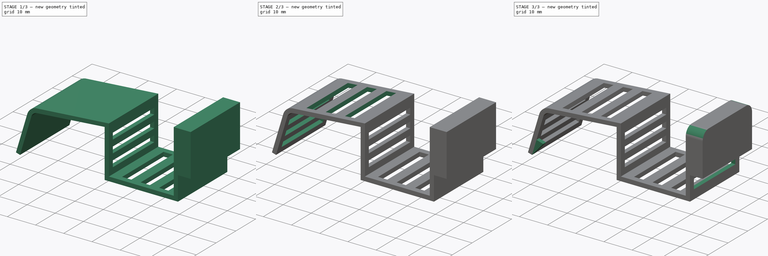
[diagram: build sequence overview — one tinted view per stage of 3, left to right]
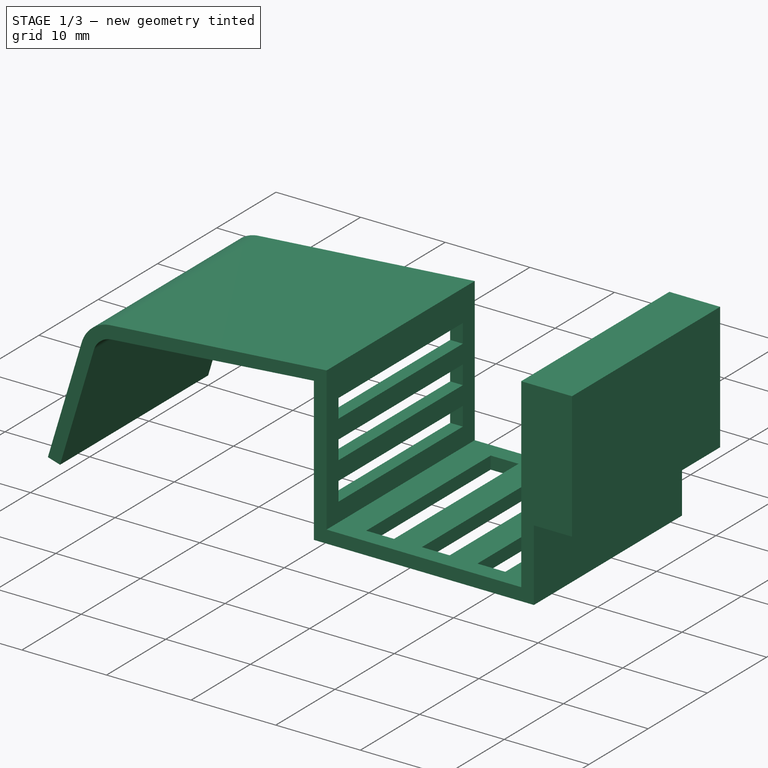
[diagram: stage 1 of 3 — iso view after this stage's code; geometry added in this stage tinted green]
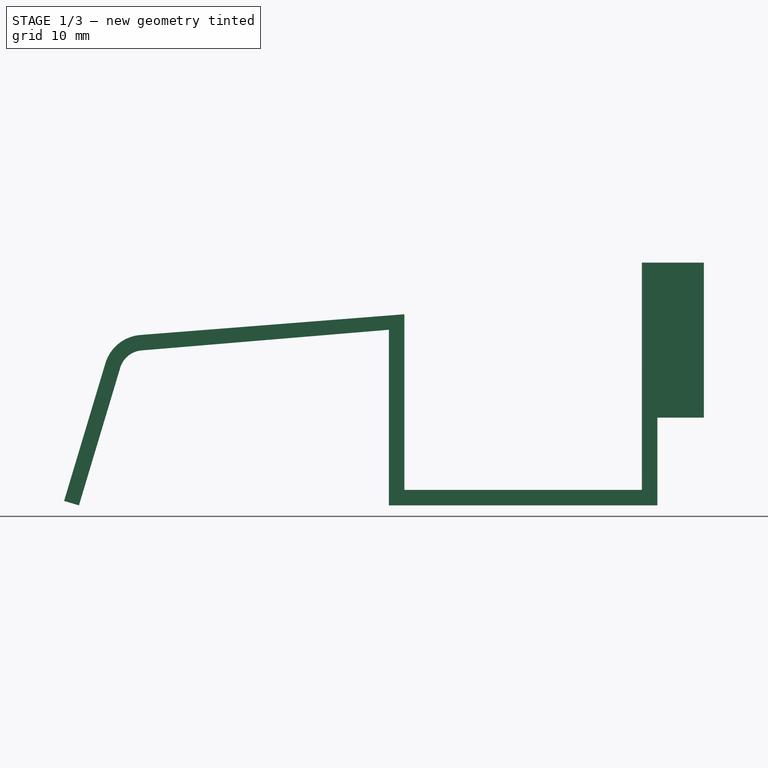
[diagram: stage 1 of 3 — front view after this stage's code; geometry added in this stage tinted green]
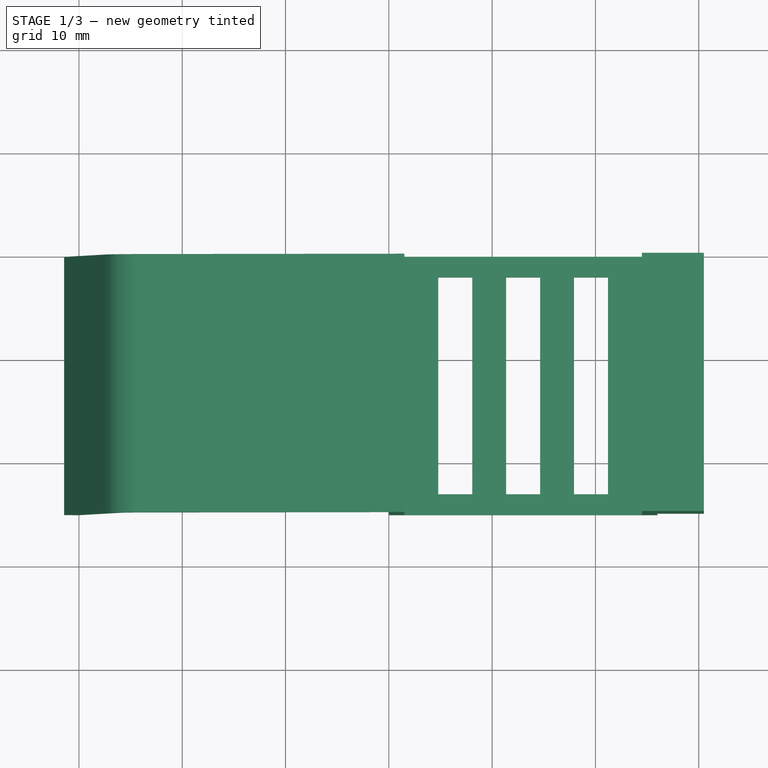
[diagram: stage 1 of 3 — top view after this stage's code; geometry added in this stage tinted green]
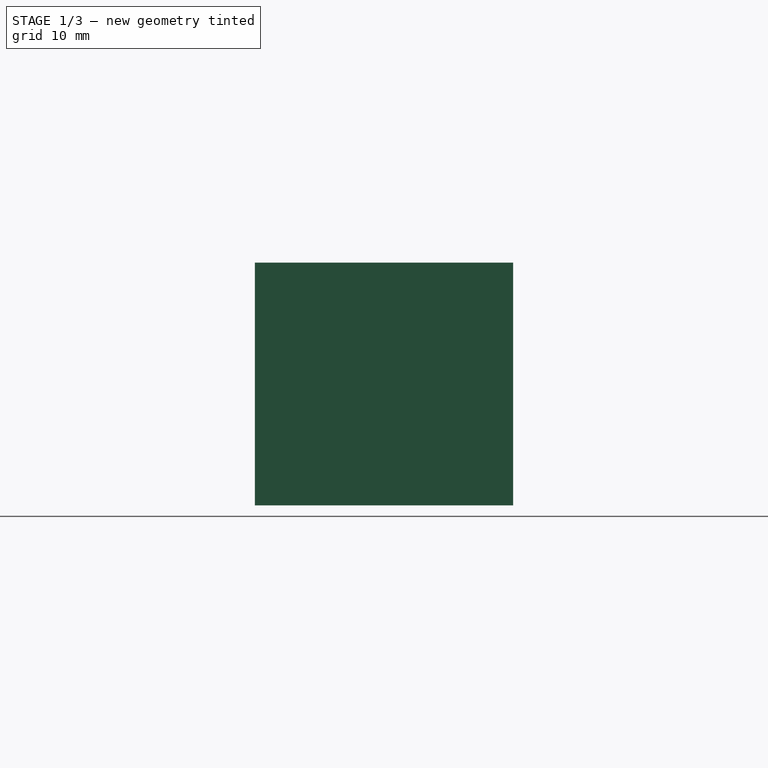
[diagram: stage 1 of 3 — right view after this stage's code; geometry added in this stage tinted green]
FCSTD DOCUMENT  (FreeCAD 0.16R6712 (Git))
Label: Porte camera
License: All rights reserved
LicenseURL: http://en.wikipedia.org/wiki/All_rights_reserved
objects: Sketcher::SketchObject×7, PartDesign::Pocket×5, PartDesign::Pad×2, PartDesign::Fillet×1
note: 22 computed .brp shape members not serialized (recipe doc carries the construction recipe); baked Part::Feature solids carry a one-line shape summary decoded from their .brp

FEATURE [Sketcher::SketchObject] Sketch
  Placement = pos=(0,0,0) rot=(1,0,0;1.5708rad)
  sketch-geometry (19):
    g0: LineSegment StartX=0 StartY=0 StartZ=0 EndX=0 EndY=-17 EndZ=0
    g1: LineSegment StartX=0 StartY=-17 StartZ=0 EndX=26 EndY=-17 EndZ=0
    g2: LineSegment StartX=30.5 StartY=6.5 StartZ=0 EndX=24.5 EndY=6.5 EndZ=0
    g3: LineSegment StartX=24.5 StartY=6.5 StartZ=0 EndX=24.5 EndY=-15.5 EndZ=0
    g4: LineSegment StartX=24.5 StartY=-15.5 StartZ=0 EndX=1.5 EndY=-15.5 EndZ=0
    g5: LineSegment StartX=1.5 StartY=-15.5 StartZ=0 EndX=1.5 EndY=1.5 EndZ=0
    g6: LineSegment StartX=1.5 StartY=1.5 StartZ=0 EndX=-24.0443 EndY=-0.503627 EndZ=0
    g7: LineSegment StartX=-27.4386 StartY=-3.2418 StartZ=0 EndX=-31.4367 EndY=-16.569 EndZ=0
    g8: LineSegment StartX=-31.4367 StartY=-16.569 StartZ=0 EndX=-30 EndY=-17 EndZ=0
    g9: LineSegment StartX=-30 StartY=-17 StartZ=0 EndX=-26.0018 EndY=-3.67282 EndZ=0
    g10: LineSegment StartX=-23.9389 StartY=-2 StartZ=0 EndX=0 EndY=0 EndZ=0
    g11: LineSegment [constr] StartX=0 StartY=-17 StartZ=0 EndX=-30 EndY=-17 EndZ=0
    g12: LineSegment [constr] StartX=-25.5 StartY=-2 StartZ=0 EndX=-26.9367 EndY=-1.56898 EndZ=0
    g13: ArcOfCircle CenterX=-23.7425 CenterY=-4.35062 CenterZ=0 NormalX=0 NormalY=0 NormalZ=1 Radius=2.35881 StartAngle=1.65415 EndAngle=2.85014
    g14: LineSegment [constr] StartX=-23.9389 StartY=-2 StartZ=0 EndX=-25.5 EndY=-2 EndZ=0
    g15: ArcOfCircle CenterX=-23.7425 CenterY=-4.35062 CenterZ=0 NormalX=0 NormalY=0 NormalZ=1 Radius=3.85881 StartAngle=1.64907 EndAngle=2.85014
    g16: LineSegment StartX=26 StartY=-17 StartZ=0 EndX=26 EndY=-8.5 EndZ=0
    g17: LineSegment StartX=26 StartY=-8.5 StartZ=0 EndX=30.5 EndY=-8.5 EndZ=0
    g18: LineSegment StartX=30.5 StartY=-8.5 StartZ=0 EndX=30.5 EndY=6.5 EndZ=0
  constraints (52):
    c: Coincident(g-1,g0)
    c: PointOnObject(g0,g-2)
    c: Coincident(g0,g1)
    c: Horizontal(g1)
    c: Horizontal(g2)
    c: Coincident(g2,g3)
    c: Vertical(g3)
    c: Coincident(g3,g4)
    c: Horizontal(g4)
    c: Coincident(g4,g5)
    c: Vertical(g5)
    c: Coincident(g5,g6)
    c: Coincident(g7,g8)
    c: Coincident(g8,g9)
    c: Coincident(g10,g0)
    c: DistanceX(g4,g3) = 23
    c: DistanceY(g3,g2) = 22
    c: DistanceY(g1,g3) = 1.5
    c: DistanceX(g0,g4) = 1.5
    c: DistanceY(g0,g-1) = 17
    c: DistanceY(g-1,g5) = 1.5
    c: Coincident(g11,g0)
    c: Coincident(g11,g8)
    c: Horizontal(g11)
    c: DistanceX(g8,g0) = 30
    c: DistanceX(g12,g-1) = 25.5
    c: Perpendicular(g9,g8)
    c: PointOnObject(g12,g7)
    c: Perpendicular(g9,g12)
    c: Perpendicular(g7,g12)
    c: Distance(g8) = 1.5
    c: Tangent(g9,g13) = 1.5708
    c: Tangent(g10,g13) = 1.5708
    c: Coincident(g14,g10)
    c: Coincident(g14,g12)
    c: Horizontal(g14)
    c: Distance(g12) = 1.5
    c: Tangent(g7,g15) = -1.5708
    c: Tangent(g6,g15) = -1.5708
    c: Coincident(g13,g15)
    c: DistanceY(g13,g10) = 2.35062
    c: DistanceX(g3,g1) = 1.5
    c: DistanceX(g2,g2) = 6
    c: Coincident(g1,g16)
    c: Vertical(g16)
    c: Coincident(g16,g17)
    c: Horizontal(g17)
    c: Coincident(g17,g18)
    c: Coincident(g18,g2)
    c: Vertical(g18)
    c: DistanceY(g17,g2) = 15
    c: DistanceY(g10,g-1) = 2
FEATURE [PartDesign::Pad] Pad
  Length = 25
  Length2 = 100
  Placement = pos=(0,0,0) rot=(1,0,0;1.5708rad)
  Sketch = -> Sketch
  Type = 0
FEATURE [Sketcher::SketchObject] Sketch001
  ExternalGeometry = -> [Pad]
  Placement = pos=(0,0,-15.5) rot=(0,0,1;3.14159rad)
  Support = -> Pad [Face9]
  sketch-geometry (16):
    g0: LineSegment StartX=-8.07143 StartY=23 StartZ=0 EndX=-4.78571 EndY=23 EndZ=0
    g1: LineSegment StartX=-4.78571 StartY=23 StartZ=0 EndX=-4.78571 EndY=2 EndZ=0
    g2: LineSegment StartX=-4.78571 StartY=2 StartZ=0 EndX=-8.07143 EndY=2 EndZ=0
    g3: LineSegment StartX=-8.07143 StartY=2 StartZ=0 EndX=-8.07143 EndY=23 EndZ=0
    g4: LineSegment StartX=-14.6429 StartY=23 StartZ=0 EndX=-11.3571 EndY=23 EndZ=0
    g5: LineSegment StartX=-11.3571 StartY=23 StartZ=0 EndX=-11.3571 EndY=2 EndZ=0
    g6: LineSegment StartX=-11.3571 StartY=2 StartZ=0 EndX=-14.6429 EndY=2 EndZ=0
    g7: LineSegment StartX=-14.6429 StartY=2 StartZ=0 EndX=-14.6429 EndY=23 EndZ=0
    g8: LineSegment StartX=-21.2143 StartY=23 StartZ=0 EndX=-17.9286 EndY=23 EndZ=0
    g9: LineSegment StartX=-17.9286 StartY=23 StartZ=0 EndX=-17.9286 EndY=2 EndZ=0
    g10: LineSegment StartX=-17.9286 StartY=2 StartZ=0 EndX=-21.2143 EndY=2 EndZ=0
    g11: LineSegment StartX=-21.2143 StartY=2 StartZ=0 EndX=-21.2143 EndY=23 EndZ=0
    g12: LineSegment [constr] StartX=-8.07143 StartY=23 StartZ=0 EndX=-11.3571 EndY=23 EndZ=0
    g13: LineSegment [constr] StartX=-14.6429 StartY=23 StartZ=0 EndX=-17.9286 EndY=23 EndZ=0
    g14: LineSegment [constr] StartX=-4.78571 StartY=23 StartZ=0 EndX=-1.5 EndY=23 EndZ=0
    g15: LineSegment [constr] StartX=-21.2143 StartY=23 StartZ=0 EndX=-24.5 EndY=23 EndZ=0
  constraints (46):
    c: Coincident(g0,g1)
    c: Coincident(g1,g2)
    c: Coincident(g2,g3)
    c: Coincident(g3,g0)
    c: Horizontal(g0)
    c: Horizontal(g2)
    c: Vertical(g1)
    c: Vertical(g3)
    c: DistanceY(g0,g-3) = 2
    c: DistanceY(g-3,g1) = 2
    c: Coincident(g4,g5)
    c: Coincident(g5,g6)
    c: Coincident(g6,g7)
    c: Coincident(g7,g4)
    c: Horizontal(g4)
    c: Horizontal(g6)
    c: Vertical(g5)
    c: Vertical(g7)
    c: Equal(g0,g4) = 3
    c: Coincident(g8,g9)
    c: Coincident(g9,g10)
    c: Coincident(g10,g11)
    c: Coincident(g11,g8)
    c: Horizontal(g8)
    c: Horizontal(g10)
    c: Vertical(g9)
    c: Vertical(g11)
    c: Equal(g8,g0)
    c: Equal(g3,g5)
    c: Equal(g3,g9)
    c: Coincident(g12,g0)
    c: Coincident(g12,g4)
    c: Horizontal(g12)
    c: Coincident(g13,g4)
    c: Coincident(g13,g8)
    c: Horizontal(g13)
    c: Equal(g12,g13)
    c: Coincident(g14,g0)
    c: PointOnObject(g14,g-3)
    c: Horizontal(g14)
    c: Coincident(g15,g8)
    c: PointOnObject(g15,g-4)
    c: Horizontal(g15)
    c: Equal(g12,g14)
    c: Equal(g15,g13)
    c: Equal(g0,g14)
FEATURE [PartDesign::Pocket] Pocket
  Length = 5
  Placement = pos=(0,0,0) rot=(1,0,0;1.5708rad)
  Sketch = -> Sketch001
  Type = 1
FEATURE [Sketcher::SketchObject] Sketch002
  ExternalGeometry = -> [Pocket]
  Placement = pos=(1.5,0,0) rot=(0.707107,0,0.707107;3.14159rad)
  Support = -> Pocket [Face14]
  sketch-geometry (16):
    g0: LineSegment StartX=-4.42857 StartY=23 StartZ=0 EndX=-2.21429 EndY=23 EndZ=0
    g1: LineSegment StartX=-2.21429 StartY=23 StartZ=0 EndX=-2.21429 EndY=2 EndZ=0
    g2: LineSegment StartX=-2.21429 StartY=2 StartZ=0 EndX=-4.42857 EndY=2 EndZ=0
    g3: LineSegment StartX=-4.42857 StartY=2 StartZ=0 EndX=-4.42857 EndY=23 EndZ=0
    g4: LineSegment StartX=-8.85714 StartY=23 StartZ=0 EndX=-6.64286 EndY=23 EndZ=0
    g5: LineSegment StartX=-6.64286 StartY=23 StartZ=0 EndX=-6.64286 EndY=2 EndZ=0
    g6: LineSegment StartX=-6.64286 StartY=2 StartZ=0 EndX=-8.85714 EndY=2 EndZ=0
    g7: LineSegment StartX=-8.85714 StartY=2 StartZ=0 EndX=-8.85714 EndY=23 EndZ=0
    g8: LineSegment StartX=-13.2857 StartY=23 StartZ=0 EndX=-11.0714 EndY=23 EndZ=0
    g9: LineSegment StartX=-11.0714 StartY=23 StartZ=0 EndX=-11.0714 EndY=2 EndZ=0
    g10: LineSegment StartX=-11.0714 StartY=2 StartZ=0 EndX=-13.2857 EndY=2 EndZ=0
    g11: LineSegment StartX=-13.2857 StartY=2 StartZ=0 EndX=-13.2857 EndY=23 EndZ=0
    g12: LineSegment [constr] StartX=-15.5 StartY=23 StartZ=0 EndX=-13.2857 EndY=23 EndZ=0
    g13: LineSegment [constr] StartX=-11.0714 StartY=23 StartZ=0 EndX=-8.85714 EndY=23 EndZ=0
    g14: LineSegment [constr] StartX=-6.64286 StartY=23 StartZ=0 EndX=-4.42857 EndY=23 EndZ=0
    g15: LineSegment [constr] StartX=-2.21429 StartY=23 StartZ=0 EndX=0 EndY=23 EndZ=0
  constraints (46):
    c: Coincident(g0,g1)
    c: Coincident(g1,g2)
    c: Coincident(g2,g3)
    c: Coincident(g3,g0)
    c: Horizontal(g0)
    c: Horizontal(g2)
    c: Vertical(g1)
    c: Vertical(g3)
    c: Coincident(g4,g5)
    c: Coincident(g5,g6)
    c: Coincident(g6,g7)
    c: Coincident(g7,g4)
    c: Horizontal(g4)
    c: Horizontal(g6)
    c: Vertical(g5)
    c: Vertical(g7)
    c: Coincident(g8,g9)
    c: Coincident(g9,g10)
    c: Coincident(g10,g11)
    c: Coincident(g11,g8)
    c: Horizontal(g8)
    c: Horizontal(g10)
    c: Vertical(g9)
    c: Vertical(g11)
    c: PointOnObject(g12,g-4)
    c: Coincident(g12,g8)
    c: Coincident(g13,g8)
    c: Coincident(g14,g4)
    c: Coincident(g14,g0)
    c: Coincident(g15,g0)
    c: PointOnObject(g15,g-3)
    c: Horizontal(g15)
    c: Coincident(g4,g13)
    c: Horizontal(g12)
    c: Horizontal(g13)
    c: Horizontal(g14)
    c: Equal(g12,g8)
    c: Equal(g8,g13)
    c: Equal(g13,g4)
    c: Equal(g4,g14)
    c: Equal(g14,g0)
    c: Equal(g0,g15)
    c: Equal(g9,g5)
    c: Equal(g5,g1)
    c: DistanceY(g-1,g1) = 2
    c: DistanceY(g0,g-3) = 2
FEATURE [PartDesign::Pocket] Pocket001
  Length = 0
  Placement = pos=(0,0,0) rot=(1,0,0;1.5708rad)
  Sketch = -> Sketch002
  Type = 3
  UpToFace = -> Pocket [Face3]
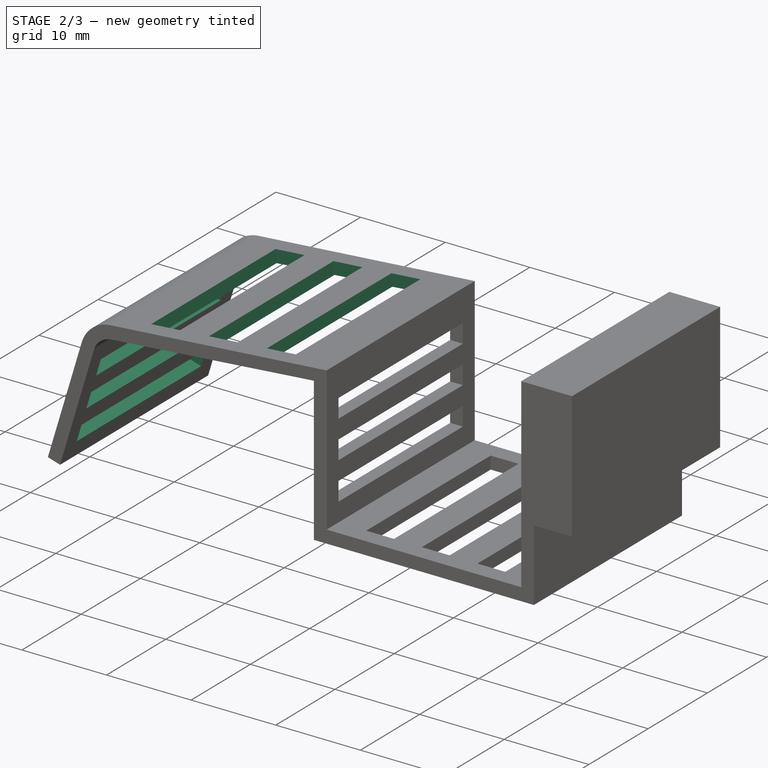
[diagram: stage 2 of 3 — iso view after this stage's code; geometry added in this stage tinted green]
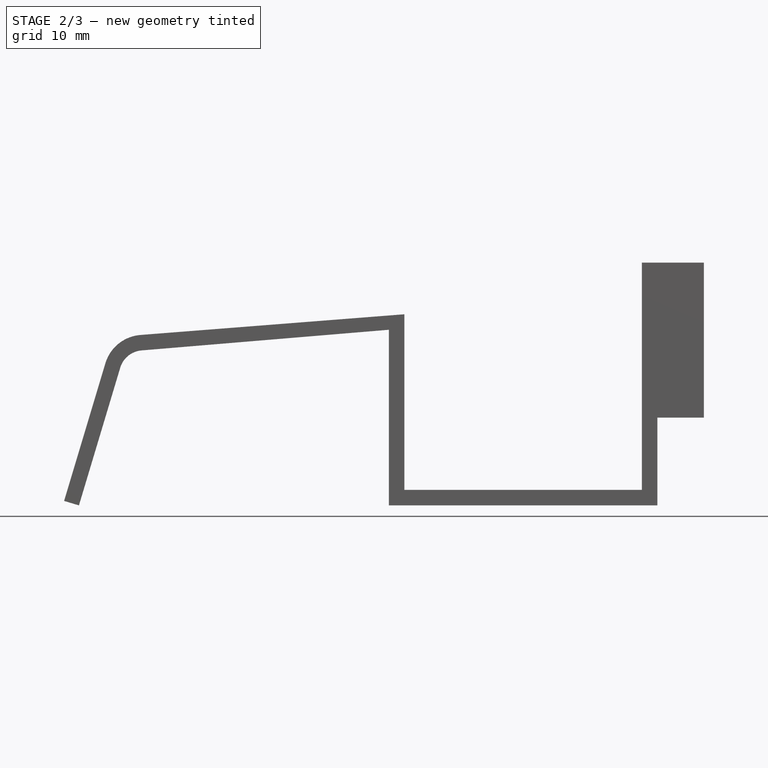
[diagram: stage 2 of 3 — front view after this stage's code; geometry added in this stage tinted green]
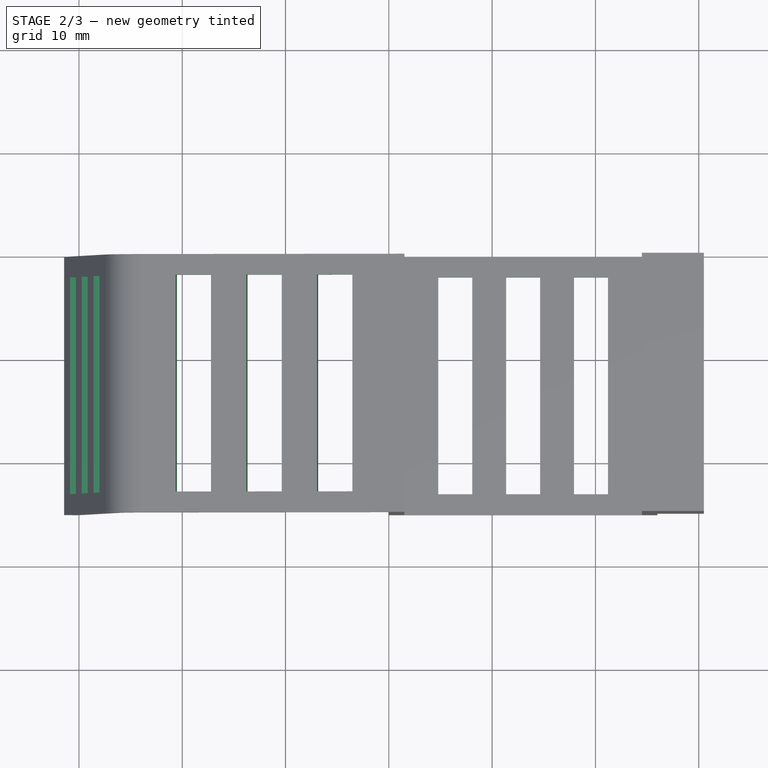
[diagram: stage 2 of 3 — top view after this stage's code; geometry added in this stage tinted green]
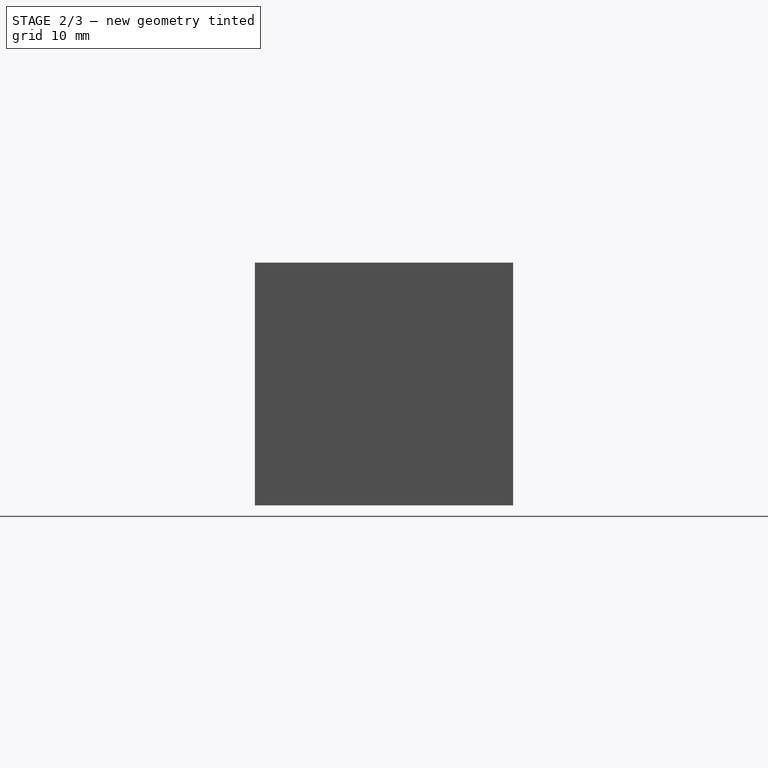
[diagram: stage 2 of 3 — right view after this stage's code; geometry added in this stage tinted green]
FEATURE [Sketcher::SketchObject] Sketch003
  ExternalGeometry = -> [Pocket001]
  Placement = pos=(-0.107764,0,1.37389) rot=(-0.039129,0,0.999234;3.14159rad)
  Support = -> Pocket001 [Face27]
  sketch-geometry (16):
    g0: LineSegment StartX=17.1586 StartY=23 StartZ=0 EndX=20.5903 EndY=23 EndZ=0
    g1: LineSegment StartX=20.5903 StartY=23 StartZ=0 EndX=20.5903 EndY=2 EndZ=0
    g2: LineSegment StartX=20.5903 StartY=2 StartZ=0 EndX=17.1586 EndY=2 EndZ=0
    g3: LineSegment StartX=17.1586 StartY=2 StartZ=0 EndX=17.1586 EndY=23 EndZ=0
    g4: LineSegment StartX=10.2951 StartY=23 StartZ=0 EndX=13.7269 EndY=23 EndZ=0
    g5: LineSegment StartX=13.7269 StartY=23 StartZ=0 EndX=13.7269 EndY=2 EndZ=0
    g6: LineSegment StartX=13.7269 StartY=2 StartZ=0 EndX=10.2951 EndY=2 EndZ=0
    g7: LineSegment StartX=10.2951 StartY=2 StartZ=0 EndX=10.2951 EndY=23 EndZ=0
    g8: LineSegment StartX=3.43171 StartY=23 StartZ=0 EndX=6.86343 EndY=23 EndZ=0
    g9: LineSegment StartX=6.86343 StartY=23 StartZ=0 EndX=6.86343 EndY=2 EndZ=0
    g10: LineSegment StartX=6.86343 StartY=2 StartZ=0 EndX=3.43171 EndY=2 EndZ=0
    g11: LineSegment StartX=3.43171 StartY=2 StartZ=0 EndX=3.43171 EndY=23 EndZ=0
    g12: LineSegment [constr] StartX=0 StartY=23 StartZ=0 EndX=3.43171 EndY=23 EndZ=0
    g13: LineSegment [constr] StartX=6.86343 StartY=23 StartZ=0 EndX=10.2951 EndY=23 EndZ=0
    g14: LineSegment [constr] StartX=13.7269 StartY=23 StartZ=0 EndX=17.1586 EndY=23 EndZ=0
    g15: LineSegment [constr] StartX=20.5903 StartY=23 StartZ=0 EndX=24.022 EndY=23 EndZ=0
  constraints (46):
    c: Coincident(g0,g1)
    c: Coincident(g1,g2)
    c: Coincident(g2,g3)
    c: Coincident(g3,g0)
    c: Horizontal(g0)
    c: Horizontal(g2)
    c: Vertical(g1)
    c: Vertical(g3)
    c: Coincident(g4,g5)
    c: Coincident(g5,g6)
    c: Coincident(g6,g7)
    c: Coincident(g7,g4)
    c: Horizontal(g4)
    c: Horizontal(g6)
    c: Vertical(g5)
    c: Vertical(g7)
    c: Coincident(g8,g9)
    c: Coincident(g9,g10)
    c: Coincident(g10,g11)
    c: Coincident(g11,g8)
    c: Horizontal(g8)
    c: Horizontal(g10)
    c: Vertical(g9)
    c: Vertical(g11)
    c: PointOnObject(g12,g-4)
    c: Coincident(g12,g8)
    c: Horizontal(g12)
    c: Coincident(g13,g8)
    c: Coincident(g13,g4)
    c: Coincident(g14,g4)
    c: Coincident(g14,g0)
    c: Coincident(g15,g0)
    c: PointOnObject(g15,g-3)
    c: Horizontal(g15)
    c: Horizontal(g14)
    c: Horizontal(g13)
    c: Equal(g12,g8)
    c: Equal(g8,g13)
    c: Equal(g13,g4)
    c: Equal(g4,g14)
    c: Equal(g14,g0)
    c: Equal(g0,g15)
    c: Equal(g9,g5)
    c: Equal(g5,g1)
    c: DistanceY(g0,g-3) = 2
    c: DistanceY(g-3,g1) = 2
FEATURE [PartDesign::Pocket] Pocket002
  Length = 5
  Placement = pos=(0,0,0) rot=(1,0,0;1.5708rad)
  Sketch = -> Sketch003
  Type = 1
FEATURE [Sketcher::SketchObject] Sketch004
  ExternalGeometry = -> [Pocket002]
  Placement = pos=(-24.2808,0,7.28423) rot=(-0.596931,0,0.802293;3.14159rad)
  Support = -> Pocket002 [Face29]
  sketch-geometry (16):
    g0: LineSegment StartX=22.9158 StartY=23 StartZ=0 EndX=20.9281 EndY=23 EndZ=0
    g1: LineSegment StartX=20.9281 StartY=23 StartZ=0 EndX=20.9281 EndY=2 EndZ=0
    g2: LineSegment StartX=20.9281 StartY=2 StartZ=0 EndX=22.9158 EndY=2 EndZ=0
    g3: LineSegment StartX=22.9158 StartY=2 StartZ=0 EndX=22.9158 EndY=23 EndZ=0
    g4: LineSegment StartX=18.9403 StartY=23 StartZ=0 EndX=16.9526 EndY=23 EndZ=0
    g5: LineSegment StartX=16.9526 StartY=23 StartZ=0 EndX=16.9526 EndY=2 EndZ=0
    g6: LineSegment StartX=16.9526 StartY=2 StartZ=0 EndX=18.9403 EndY=2 EndZ=0
    g7: LineSegment StartX=18.9403 StartY=2 StartZ=0 EndX=18.9403 EndY=23 EndZ=0
    g8: LineSegment StartX=14.9649 StartY=23 StartZ=0 EndX=12.9772 EndY=23 EndZ=0
    g9: LineSegment StartX=12.9772 StartY=23 StartZ=0 EndX=12.9772 EndY=2 EndZ=0
    g10: LineSegment StartX=12.9772 StartY=2 StartZ=0 EndX=14.9649 EndY=2 EndZ=0
    g11: LineSegment StartX=14.9649 StartY=2 StartZ=0 EndX=14.9649 EndY=23 EndZ=0
    g12: LineSegment [constr] StartX=10.9895 StartY=23 StartZ=0 EndX=12.9772 EndY=23 EndZ=0
    g13: LineSegment [constr] StartX=14.9649 StartY=23 StartZ=0 EndX=16.9526 EndY=23 EndZ=0
    g14: LineSegment [constr] StartX=18.9403 StartY=23 StartZ=0 EndX=20.9281 EndY=23 EndZ=0
    g15: LineSegment [constr] StartX=22.9158 StartY=23 StartZ=0 EndX=24.9035 EndY=23 EndZ=0
  constraints (46):
    c: Coincident(g0,g1)
    c: Coincident(g1,g2)
    c: Coincident(g2,g3)
    c: Coincident(g3,g0)
    c: Horizontal(g0)
    c: Horizontal(g2)
    c: Vertical(g1)
    c: Vertical(g3)
    c: Coincident(g4,g5)
    c: Coincident(g5,g6)
    c: Coincident(g6,g7)
    c: Coincident(g7,g4)
    c: Horizontal(g4)
    c: Horizontal(g6)
    c: Vertical(g5)
    c: Vertical(g7)
    c: Coincident(g8,g9)
    c: Coincident(g9,g10)
    c: Coincident(g10,g11)
    c: Coincident(g11,g8)
    c: Horizontal(g8)
    c: Horizontal(g10)
    c: Vertical(g9)
    c: Vertical(g11)
    c: PointOnObject(g12,g-3)
    c: Coincident(g12,g8)
    c: Coincident(g13,g8)
    c: Coincident(g13,g4)
    c: Coincident(g14,g4)
    c: Coincident(g14,g0)
    c: Coincident(g15,g0)
    c: PointOnObject(g15,g-4)
    c: Horizontal(g12)
    c: Horizontal(g13)
    c: Horizontal(g14)
    c: Horizontal(g15)
    c: Equal(g12,g8)
    c: Equal(g8,g13)
    c: Equal(g13,g4)
    c: Equal(g4,g14)
    c: Equal(g14,g0)
    c: Equal(g0,g15)
    c: Equal(g11,g7)
    c: Equal(g7,g3)
    c: DistanceY(g0,g-4) = 2
    c: DistanceY(g-4,g2) = 2
FEATURE [PartDesign::Pocket] Pocket003
  Length = 0
  Placement = pos=(0,0,0) rot=(1,0,0;1.5708rad)
  Sketch = -> Sketch004
  Type = 3
  UpToFace = -> Pocket002 [Face18]
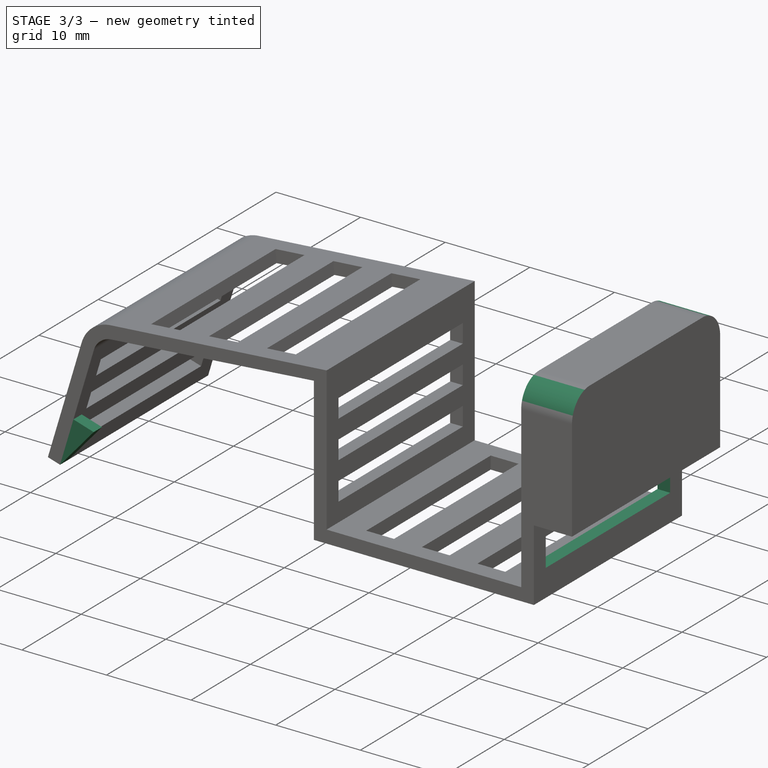
[diagram: stage 3 of 3 — iso view after this stage's code; geometry added in this stage tinted green]
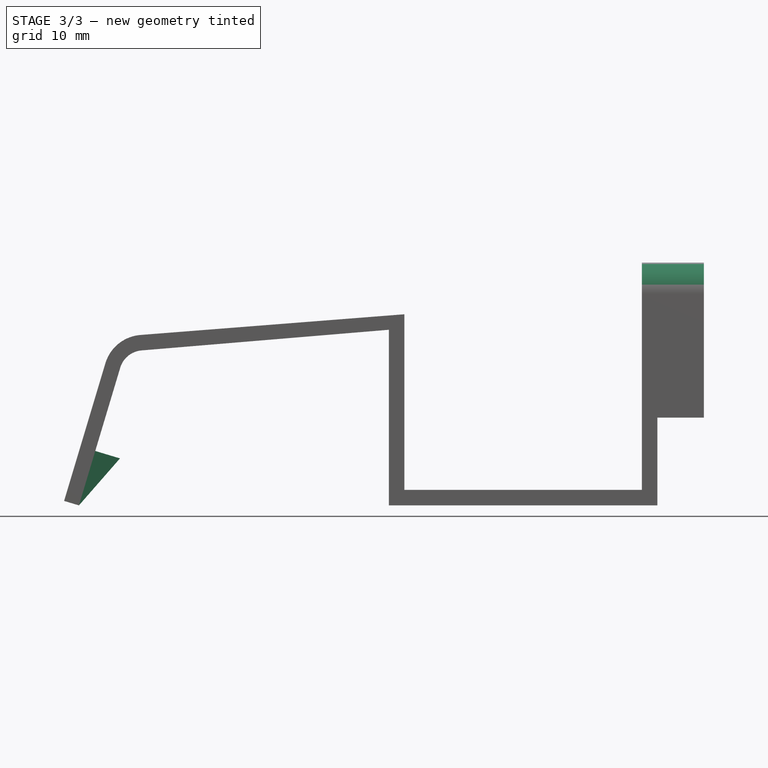
[diagram: stage 3 of 3 — front view after this stage's code; geometry added in this stage tinted green]
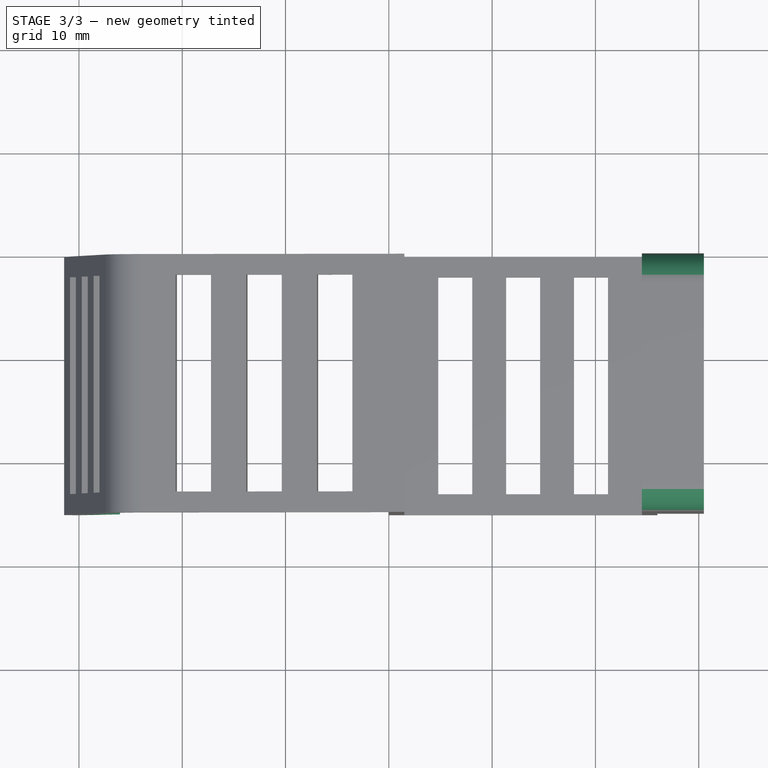
[diagram: stage 3 of 3 — top view after this stage's code; geometry added in this stage tinted green]
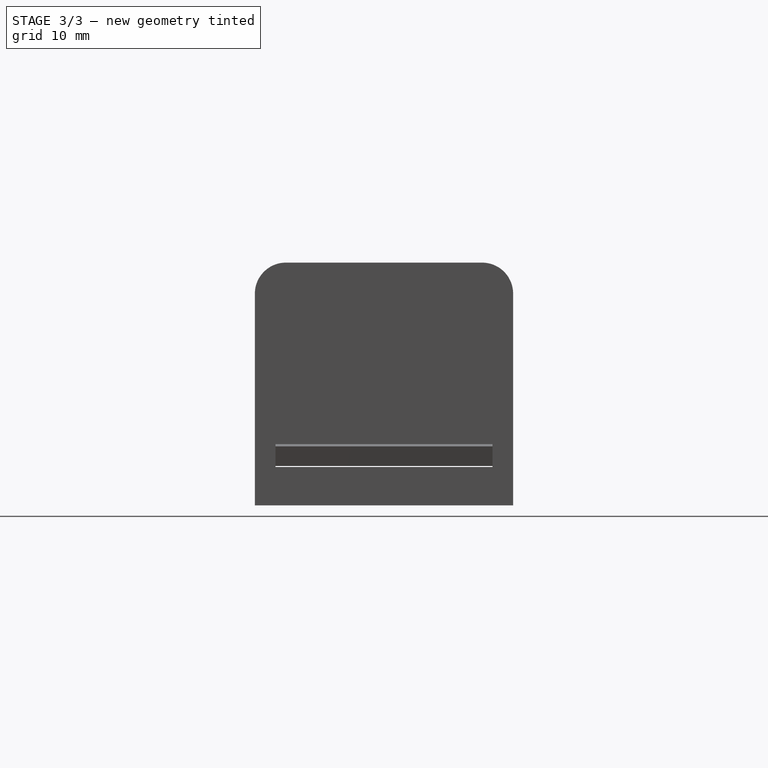
[diagram: stage 3 of 3 — right view after this stage's code; geometry added in this stage tinted green]
FEATURE [PartDesign::Fillet] Fillet
  Base = -> Pocket003 [Edge39,Edge25]
  Placement = pos=(0,0,0) rot=(1,0,0;1.5708rad)
  Radius = 3
FEATURE [Sketcher::SketchObject] Sketch005
  ExternalGeometry = -> [Fillet]
  Placement = pos=(0,-25,0) rot=(1,0,0;1.5708rad)
  Support = -> Fillet [Face20]
  sketch-geometry (3):
    g0: LineSegment StartX=-28.4196 StartY=-11.732 StartZ=0 EndX=-26.025 EndY=-12.4503 EndZ=0
    g1: LineSegment StartX=-26.025 StartY=-12.4503 StartZ=0 EndX=-30 EndY=-17 EndZ=0
    g2: LineSegment StartX=-30 StartY=-17 StartZ=0 EndX=-28.4196 EndY=-11.732 EndZ=0
  constraints (8):
    c: PointOnObject(g0,g-3)
    c: Coincident(g1,g0)
    c: Coincident(g1,g-3)
    c: Perpendicular(g-3,g0)
    c: Distance(g0,g1) = 5.5
    c: Distance(g0,g0) = 2.5
    c: Coincident(g2,g1)
    c: Coincident(g0,g2)
FEATURE [PartDesign::Pad] Pad001
  Length = 1.4
  Length2 = 100
  Placement = pos=(0,0,0) rot=(1,0,0;1.5708rad)
  Reversed = true
  Sketch = -> Sketch005
  Type = 0
FEATURE [Sketcher::SketchObject] Sketch006
  ExternalGeometry = -> [Pad001]
  Placement = pos=(24.5,0,0) rot=(0.707107,0,-0.707107;3.14159rad)
  Support = -> Pad001 [Face5]
  sketch-geometry (6):
    g0: LineSegment StartX=10.2 StartY=23 StartZ=0 EndX=13.8 EndY=23 EndZ=0
    g1: LineSegment StartX=13.8 StartY=23 StartZ=0 EndX=13.8 EndY=2 EndZ=0
    g2: LineSegment StartX=13.8 StartY=2 StartZ=0 EndX=10.2 EndY=2 EndZ=0
    g3: LineSegment StartX=10.2 StartY=2 StartZ=0 EndX=10.2 EndY=23 EndZ=0
    g4: LineSegment [constr] StartX=8.5 StartY=23 StartZ=0 EndX=10.2 EndY=23 EndZ=0
    g5: LineSegment [constr] StartX=13.8 StartY=23 StartZ=0 EndX=15.5 EndY=23 EndZ=0
  constraints (18):
    c: Coincident(g0,g1)
    c: Coincident(g1,g2)
    c: Coincident(g2,g3)
    c: Coincident(g3,g0)
    c: Horizontal(g0)
    c: Horizontal(g2)
    c: Vertical(g1)
    c: Vertical(g3)
    c: DistanceY(g0,g-3) = 2
    c: DistanceY(g-3,g1) = 2
    c: PointOnObject(g4,g-4)
    c: Coincident(g4,g0)
    c: Horizontal(g4)
    c: Coincident(g5,g0)
    c: PointOnObject(g5,g-3)
    c: Horizontal(g5)
    c: Equal(g4,g5)
    c: DistanceX(g-4,g2) = 1.7
FEATURE [PartDesign::Pocket] Pocket004
  Length = 5
  Placement = pos=(0,0,0) rot=(1,0,0;1.5708rad)
  Sketch = -> Sketch006
  Type = 1
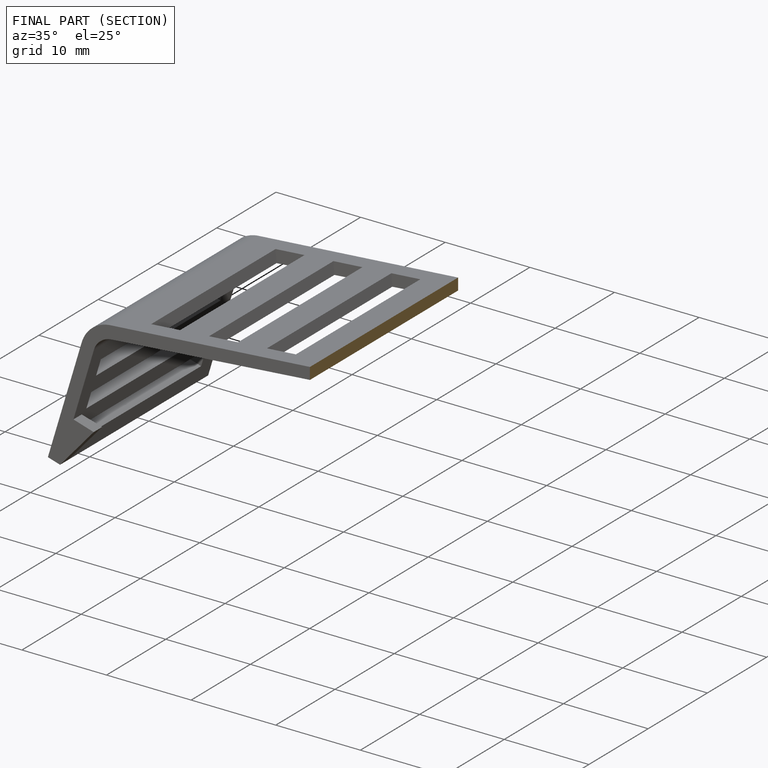
[diagram: finished part — half-section view (interior)]
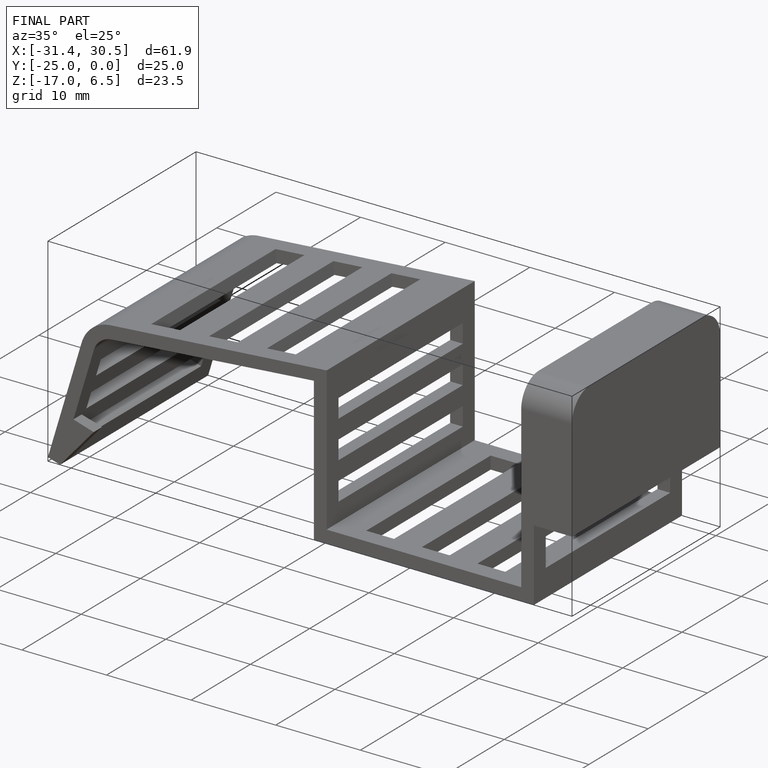
[diagram: finished part — iso view with bounding-box wireframe]
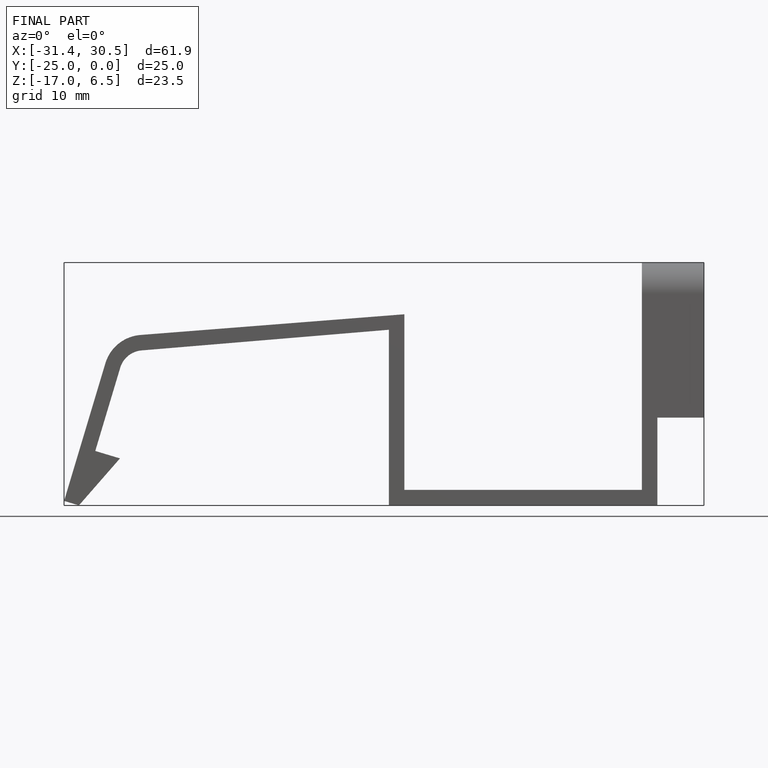
[diagram: finished part — front view with bounding-box wireframe]
